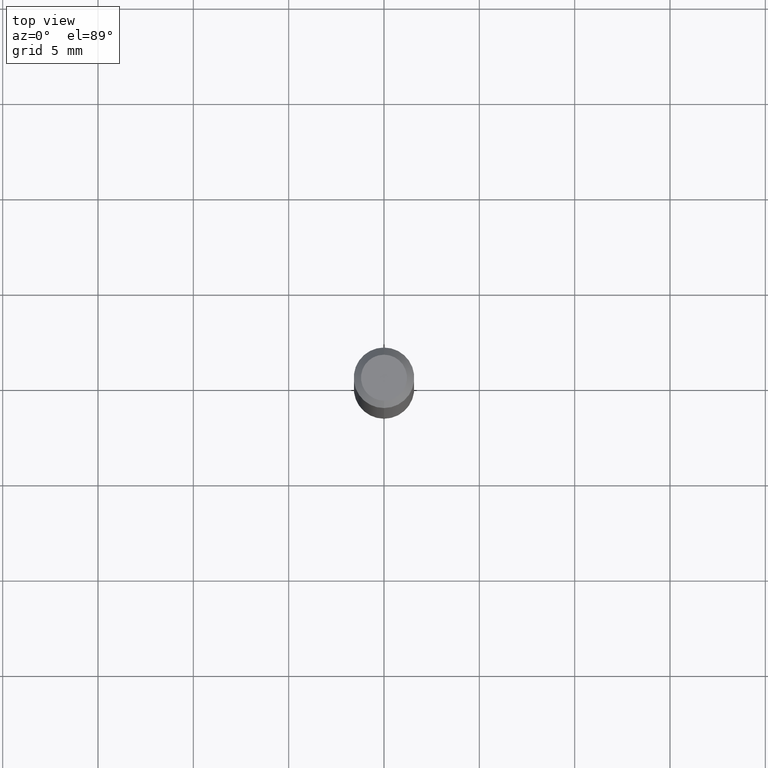
[diagram: clean part render]
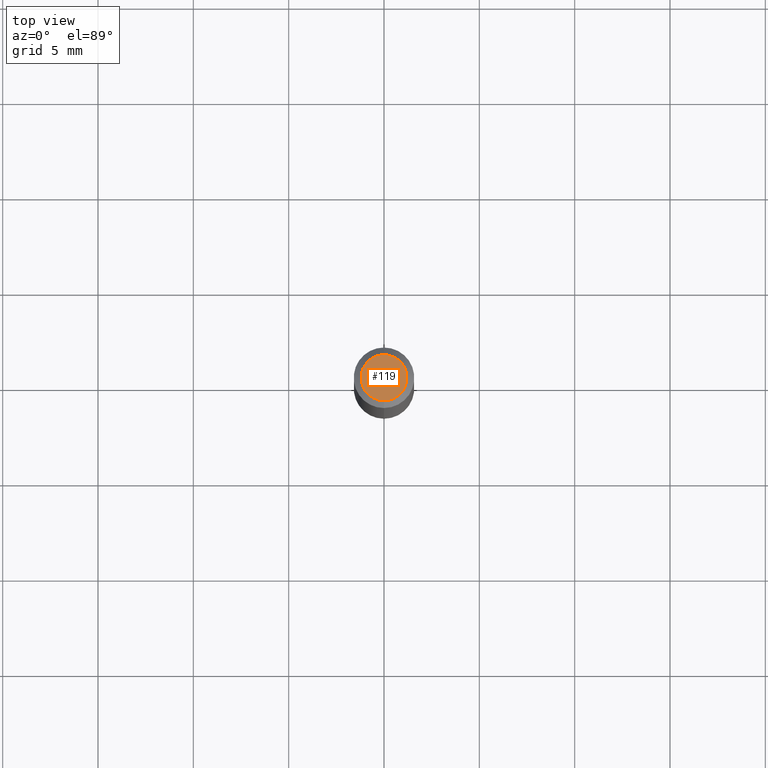
[diagram: same view with one face highlighted and labeled with its STEP entity id]
A machine part, top view. The second image highlights one B-rep face of the part: STEP entity #119.
In plain terms, the highlighted planar face has unit normal (0, -0, -1).
Its self-contained STEP definition (entity closure, byte-faithful):
#33 = AXIS2_PLACEMENT_3D ( 'NONE', #137, #145, #298 ) ;
#37 = VERTEX_POINT ( 'NONE', #54 ) ;
#54 = CARTESIAN_POINT ( 'NONE',  ( 3.840629472727447874E-16, 0.04749999999999999362, -1.747056831868805136E-16 ) ) ;
#93 = CIRCLE ( 'NONE', #380, 0.04749999999999999362 ) ;
#108 = PLANE ( 'NONE',  #33 ) ;
#119 = ADVANCED_FACE ( 'NONE', ( #143 ), #108, .F. ) ;
#137 = CARTESIAN_POINT ( 'NONE',  ( 3.316907271900976096E-16, 0.04749999999999999362, -1.702750650784775139E-16 ) ) ;
#143 = FACE_OUTER_BOUND ( 'NONE', #203, .T. ) ;
#145 = DIRECTION ( 'NONE',  ( 2.445482281465113218E-29, -3.491462041475253282E-15, -1.000000000000000000 ) ) ;
#153 = VERTEX_POINT ( 'NONE', #447 ) ;
#196 = CARTESIAN_POINT ( 'NONE',  ( 2.166999616007603867E-46, -3.093866989152393802E-32, -8.861236216806002591E-18 ) ) ;
#200 = CARTESIAN_POINT ( 'NONE',  ( 2.166999616007603867E-46, -3.093866989152393802E-32, -8.861236216806002591E-18 ) ) ;
#203 = EDGE_LOOP ( 'NONE', ( #293, #353 ) ) ;
#271 = DIRECTION ( 'NONE',  ( -2.445482281465113779E-29, 3.491462041475252887E-15, 1.000000000000000000 ) ) ;
#287 = CIRCLE ( 'NONE', #435, 0.04749999999999999362 ) ;
#293 = ORIENTED_EDGE ( 'NONE', *, *, #441, .T. ) ;
#298 = DIRECTION ( 'NONE',  ( 6.982962677686265922E-15, 1.000000000000000000, -3.491462041475253282E-15 ) ) ;
#322 = DIRECTION ( 'NONE',  ( -6.982962677686266711E-15, -1.000000000000000000, 3.491462041475252887E-15 ) ) ;
#342 = EDGE_CURVE ( 'NONE', #153, #37, #93, .T. ) ;
#353 = ORIENTED_EDGE ( 'NONE', *, *, #342, .T. ) ;
#380 = AXIS2_PLACEMENT_3D ( 'NONE', #196, #271, #497 ) ;
#435 = AXIS2_PLACEMENT_3D ( 'NONE', #200, #468, #322 ) ;
#441 = EDGE_CURVE ( 'NONE', #37, #153, #287, .T. ) ;
#447 = CARTESIAN_POINT ( 'NONE',  ( -3.773273898774340269E-16, -0.04749999999999999362, 1.569832107532684900E-16 ) ) ;
#468 = DIRECTION ( 'NONE',  ( -2.445482281465113779E-29, 3.491462041475252887E-15, 1.000000000000000000 ) ) ;
#497 = DIRECTION ( 'NONE',  ( -6.982962677686266711E-15, -1.000000000000000000, 3.491462041475252887E-15 ) ) ;